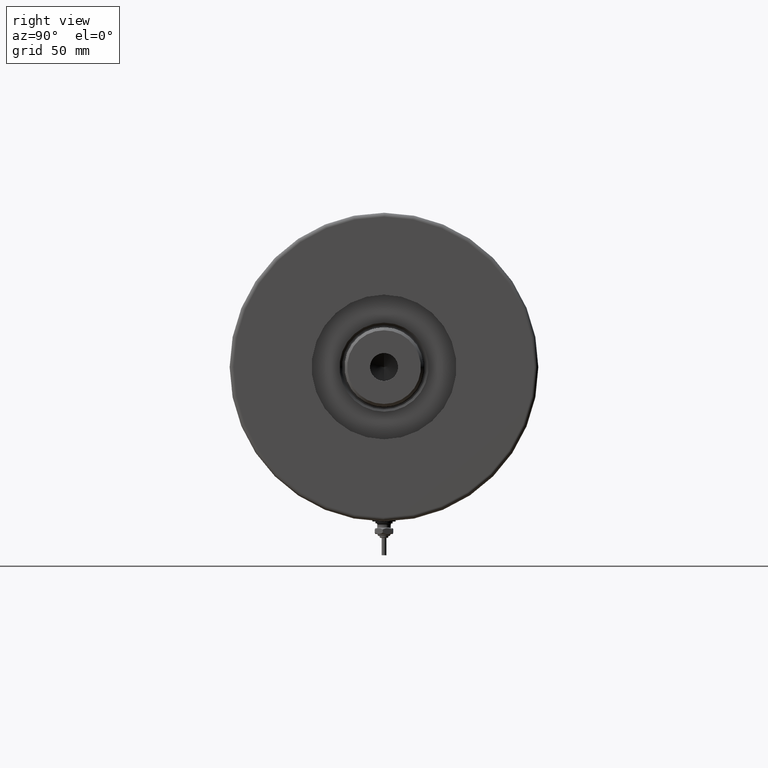
[diagram: clean part render]
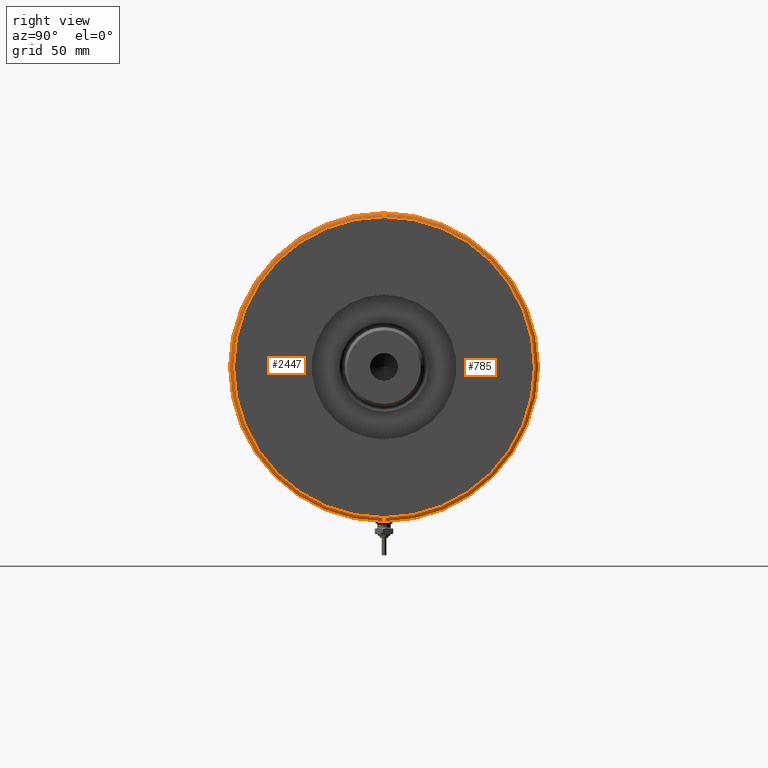
[diagram: same view with one multi-face feature highlighted, each face labeled with its STEP entity id]
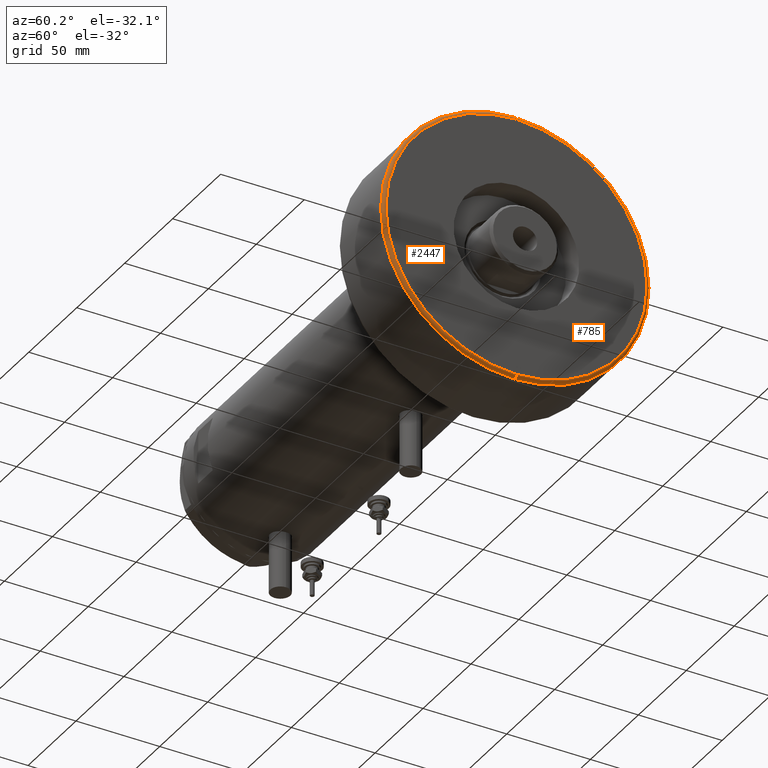
[diagram: same view with one multi-face feature highlighted, each face labeled with its STEP entity id]
A machine part, right view. The highlighted faces form ONE feature: a constant-radius fillet chain: 2 tangent blend faces with common blend radius 2 mm. The faces share edges in the B-rep.
A second angle (auxiliary view) of the same feature is appended — it is thin or edge-on in the first view.
Their STEP definitions:
[1] entity #785 (Torus):
#104 = VERTEX_POINT ( 'NONE', #2557 ) ;
#246 = ORIENTED_EDGE ( 'NONE', *, *, #974, .F. ) ;
#265 = CIRCLE ( 'NONE', #2926, 2.000000000000001776 ) ;
#298 = CARTESIAN_POINT ( 'NONE',  ( -80.00000000000000000, 0.000000000000000000, 44.00000000000000000 ) ) ;
#323 = VERTEX_POINT ( 'NONE', #298 ) ;
#326 = DIRECTION ( 'NONE',  ( 1.000000000000000000, 0.000000000000000000, 0.000000000000000000 ) ) ;
#440 = VERTEX_POINT ( 'NONE', #6322 ) ;
#476 = AXIS2_PLACEMENT_3D ( 'NONE', #684, #4498, #4111 ) ;
#684 = CARTESIAN_POINT ( 'NONE',  ( 0.000000000000000000, 0.000000000000000000, 44.00000000000000000 ) ) ;
#785 = ADVANCED_FACE ( 'NONE', ( #5090 ), #4249, .T. ) ;
#800 = DIRECTION ( 'NONE',  ( -1.000000000000000000, 1.224646799147349509E-16, 0.000000000000000000 ) ) ;
#974 = EDGE_CURVE ( 'NONE', #440, #104, #5702, .T. ) ;
#1066 = EDGE_LOOP ( 'NONE', ( #1849, #1818, #246, #3429 ) ) ;
#1132 = CIRCLE ( 'NONE', #4303, 2.000000000000001776 ) ;
#1818 = ORIENTED_EDGE ( 'NONE', *, *, #6224, .T. ) ;
#1821 = AXIS2_PLACEMENT_3D ( 'NONE', #5802, #3295, #5320 ) ;
#1827 = DIRECTION ( 'NONE',  ( 1.224646799147353207E-16, 1.000000000000000000, -0.000000000000000000 ) ) ;
#1849 = ORIENTED_EDGE ( 'NONE', *, *, #3125, .F. ) ;
#2217 = CARTESIAN_POINT ( 'NONE',  ( 0.000000000000000000, 0.000000000000000000, 46.00000000000000000 ) ) ;
#2325 = EDGE_CURVE ( 'NONE', #6112, #440, #265, .T. ) ;
#2476 = CARTESIAN_POINT ( 'NONE',  ( 78.00000000000000000, 0.000000000000000000, 44.00000000000000000 ) ) ;
#2557 = CARTESIAN_POINT ( 'NONE',  ( -78.00000000000000000, 9.674709713264090904E-15, 46.00000000000000000 ) ) ;
#2714 = AXIS2_PLACEMENT_3D ( 'NONE', #2217, #5671, #326 ) ;
#2926 = AXIS2_PLACEMENT_3D ( 'NONE', #2476, #6389, #3943 ) ;
#3125 = EDGE_CURVE ( 'NONE', #323, #6112, #5930, .T. ) ;
#3295 = DIRECTION ( 'NONE',  ( -0.000000000000000000, -0.000000000000000000, -1.000000000000000000 ) ) ;
#3429 = ORIENTED_EDGE ( 'NONE', *, *, #2325, .F. ) ;
#3943 = DIRECTION ( 'NONE',  ( 0.000000000000000000, 0.000000000000000000, -1.000000000000000000 ) ) ;
#4111 = DIRECTION ( 'NONE',  ( 1.000000000000000000, 0.000000000000000000, 0.000000000000000000 ) ) ;
#4249 = TOROIDAL_SURFACE ( 'NONE', #476, 78.00000000000000000, 2.000000000000000000 ) ;
#4303 = AXIS2_PLACEMENT_3D ( 'NONE', #5690, #1827, #800 ) ;
#4498 = DIRECTION ( 'NONE',  ( 0.000000000000000000, 0.000000000000000000, 1.000000000000000000 ) ) ;
#5090 = FACE_OUTER_BOUND ( 'NONE', #1066, .T. ) ;
#5320 = DIRECTION ( 'NONE',  ( 1.000000000000000000, 0.000000000000000000, 0.000000000000000000 ) ) ;
#5590 = CARTESIAN_POINT ( 'NONE',  ( 80.00000000000000000, 9.797174393178826052E-15, 44.00000000000000000 ) ) ;
#5671 = DIRECTION ( 'NONE',  ( 0.000000000000000000, 0.000000000000000000, 1.000000000000000000 ) ) ;
#5690 = CARTESIAN_POINT ( 'NONE',  ( -78.00000000000000000, 9.552245033349355756E-15, 44.00000000000000000 ) ) ;
#5702 = CIRCLE ( 'NONE', #2714, 78.00000000000000000 ) ;
#5802 = CARTESIAN_POINT ( 'NONE',  ( 0.000000000000000000, 0.000000000000000000, 44.00000000000000000 ) ) ;
#5930 = CIRCLE ( 'NONE', #1821, 80.00000000000000000 ) ;
#6112 = VERTEX_POINT ( 'NONE', #5590 ) ;
#6224 = EDGE_CURVE ( 'NONE', #323, #104, #1132, .T. ) ;
#6322 = CARTESIAN_POINT ( 'NONE',  ( 78.00000000000000000, 0.000000000000000000, 46.00000000000000000 ) ) ;
#6389 = DIRECTION ( 'NONE',  ( 0.000000000000000000, -1.000000000000000000, 0.000000000000000000 ) ) ;
[2] entity #2447 (Torus):
#104 = VERTEX_POINT ( 'NONE', #2557 ) ;
#165 = ORIENTED_EDGE ( 'NONE', *, *, #2325, .T. ) ;
#265 = CIRCLE ( 'NONE', #2926, 2.000000000000001776 ) ;
#298 = CARTESIAN_POINT ( 'NONE',  ( -80.00000000000000000, 0.000000000000000000, 44.00000000000000000 ) ) ;
#323 = VERTEX_POINT ( 'NONE', #298 ) ;
#440 = VERTEX_POINT ( 'NONE', #6322 ) ;
#576 = FACE_OUTER_BOUND ( 'NONE', #4916, .T. ) ;
#583 = CIRCLE ( 'NONE', #2833, 80.00000000000000000 ) ;
#800 = DIRECTION ( 'NONE',  ( -1.000000000000000000, 1.224646799147349509E-16, 0.000000000000000000 ) ) ;
#870 = AXIS2_PLACEMENT_3D ( 'NONE', #3797, #5303, #3438 ) ;
#1054 = EDGE_CURVE ( 'NONE', #104, #440, #6012, .T. ) ;
#1132 = CIRCLE ( 'NONE', #4303, 2.000000000000001776 ) ;
#1401 = CARTESIAN_POINT ( 'NONE',  ( 0.000000000000000000, 0.000000000000000000, 44.00000000000000000 ) ) ;
#1438 = DIRECTION ( 'NONE',  ( 1.000000000000000000, 0.000000000000000000, 0.000000000000000000 ) ) ;
#1469 = AXIS2_PLACEMENT_3D ( 'NONE', #1678, #4015, #4108 ) ;
#1678 = CARTESIAN_POINT ( 'NONE',  ( 0.000000000000000000, 0.000000000000000000, 44.00000000000000000 ) ) ;
#1827 = DIRECTION ( 'NONE',  ( 1.224646799147353207E-16, 1.000000000000000000, -0.000000000000000000 ) ) ;
#2325 = EDGE_CURVE ( 'NONE', #6112, #440, #265, .T. ) ;
#2447 = ADVANCED_FACE ( 'NONE', ( #576 ), #3825, .T. ) ;
#2476 = CARTESIAN_POINT ( 'NONE',  ( 78.00000000000000000, 0.000000000000000000, 44.00000000000000000 ) ) ;
#2557 = CARTESIAN_POINT ( 'NONE',  ( -78.00000000000000000, 9.674709713264090904E-15, 46.00000000000000000 ) ) ;
#2833 = AXIS2_PLACEMENT_3D ( 'NONE', #1401, #4376, #1438 ) ;
#2902 = ORIENTED_EDGE ( 'NONE', *, *, #6224, .F. ) ;
#2926 = AXIS2_PLACEMENT_3D ( 'NONE', #2476, #6389, #3943 ) ;
#3178 = EDGE_CURVE ( 'NONE', #6112, #323, #583, .T. ) ;
#3438 = DIRECTION ( 'NONE',  ( 1.000000000000000000, 0.000000000000000000, 0.000000000000000000 ) ) ;
#3676 = ORIENTED_EDGE ( 'NONE', *, *, #1054, .F. ) ;
#3797 = CARTESIAN_POINT ( 'NONE',  ( 0.000000000000000000, 0.000000000000000000, 46.00000000000000000 ) ) ;
#3825 = TOROIDAL_SURFACE ( 'NONE', #1469, 78.00000000000000000, 2.000000000000000000 ) ;
#3943 = DIRECTION ( 'NONE',  ( 0.000000000000000000, 0.000000000000000000, -1.000000000000000000 ) ) ;
#4015 = DIRECTION ( 'NONE',  ( 0.000000000000000000, 0.000000000000000000, 1.000000000000000000 ) ) ;
#4108 = DIRECTION ( 'NONE',  ( 1.000000000000000000, 0.000000000000000000, 0.000000000000000000 ) ) ;
#4303 = AXIS2_PLACEMENT_3D ( 'NONE', #5690, #1827, #800 ) ;
#4376 = DIRECTION ( 'NONE',  ( -0.000000000000000000, -0.000000000000000000, -1.000000000000000000 ) ) ;
#4916 = EDGE_LOOP ( 'NONE', ( #2902, #5897, #165, #3676 ) ) ;
#5303 = DIRECTION ( 'NONE',  ( 0.000000000000000000, 0.000000000000000000, 1.000000000000000000 ) ) ;
#5590 = CARTESIAN_POINT ( 'NONE',  ( 80.00000000000000000, 9.797174393178826052E-15, 44.00000000000000000 ) ) ;
#5690 = CARTESIAN_POINT ( 'NONE',  ( -78.00000000000000000, 9.552245033349355756E-15, 44.00000000000000000 ) ) ;
#5897 = ORIENTED_EDGE ( 'NONE', *, *, #3178, .F. ) ;
#6012 = CIRCLE ( 'NONE', #870, 78.00000000000000000 ) ;
#6112 = VERTEX_POINT ( 'NONE', #5590 ) ;
#6224 = EDGE_CURVE ( 'NONE', #323, #104, #1132, .T. ) ;
#6322 = CARTESIAN_POINT ( 'NONE',  ( 78.00000000000000000, 0.000000000000000000, 46.00000000000000000 ) ) ;
#6389 = DIRECTION ( 'NONE',  ( 0.000000000000000000, -1.000000000000000000, 0.000000000000000000 ) ) ;